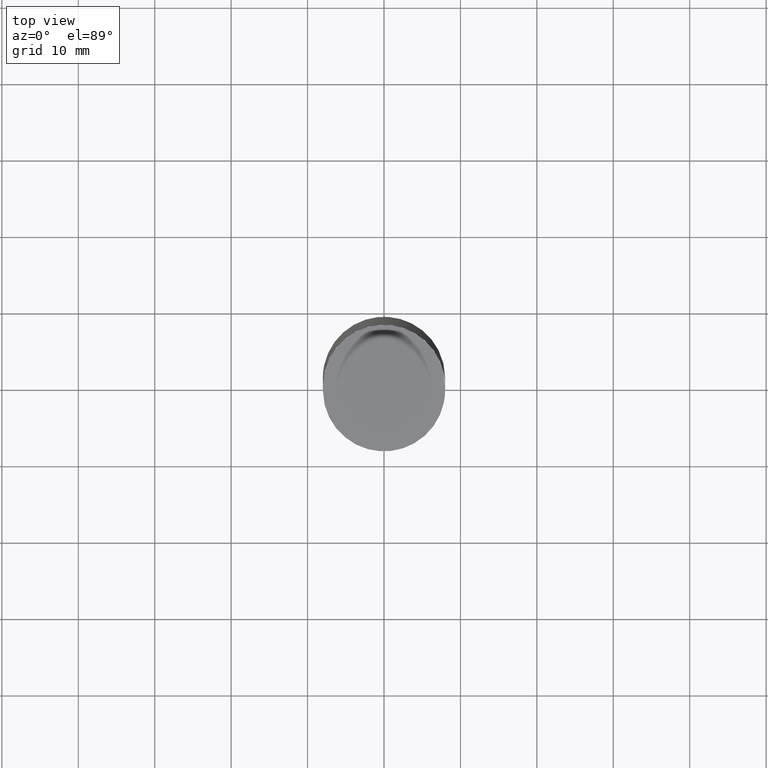
[diagram: clean part render]
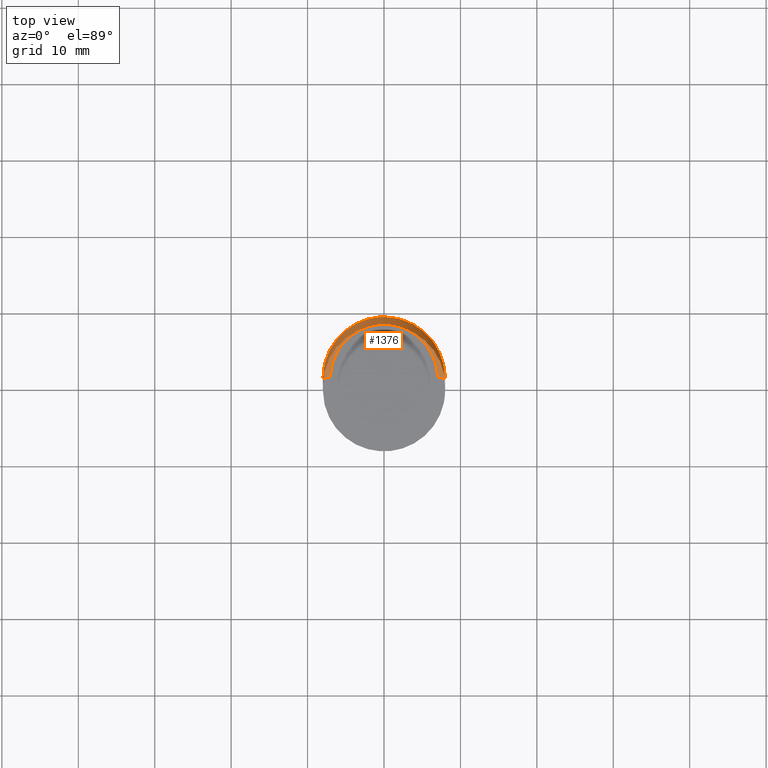
[diagram: same view with one face highlighted and labeled with its STEP entity id]
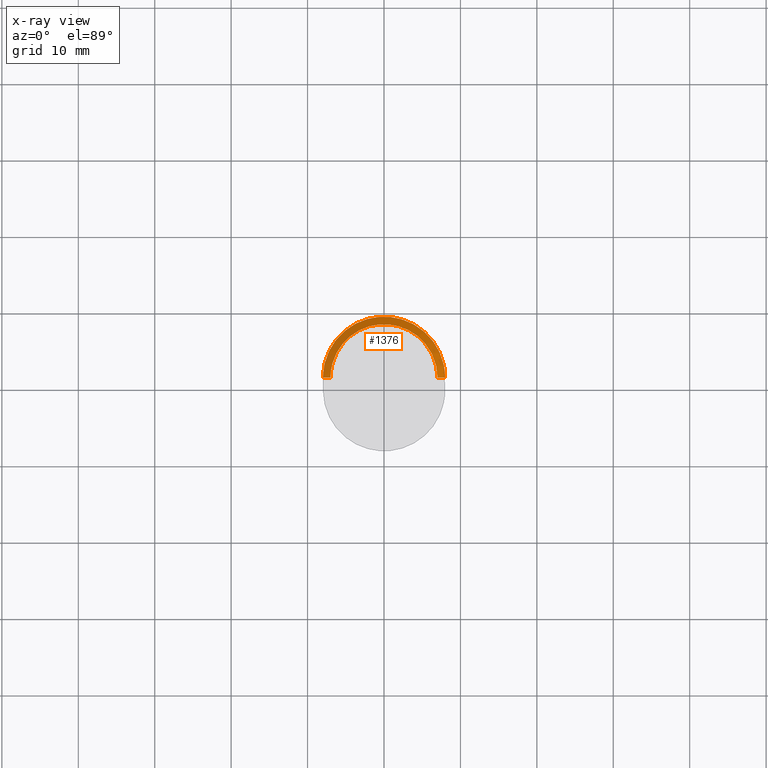
[diagram: x-ray of the same camera — body ghosted, the highlighted face saturated]
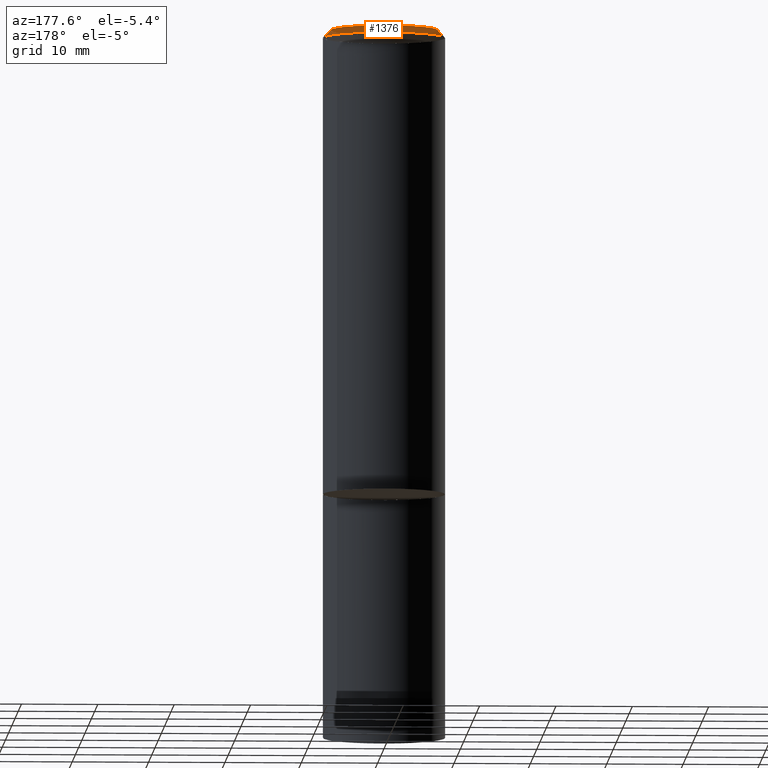
[diagram: same view with one face highlighted and labeled with its STEP entity id]
A machine part, top view. The second image highlights one B-rep face of the part: STEP entity #1376.
The next image is the same camera in x-ray: the body ghosted, the highlighted face saturated — about 0% of this face is hidden behind the body in this view.
A second angle (auxiliary view) of the same face is appended — the face is thin or edge-on in the first view.
In plain terms, the highlighted face is a freeform B-spline surface patch.
Its self-contained STEP definition (entity closure, byte-faithful):
#1190=CARTESIAN_POINT('',(8.0,0.0,60.0));
#1191=CARTESIAN_POINT('',(8.0,8.0,60.0));
#1192=CARTESIAN_POINT('',(0.0,8.0,60.0));
#1193=CARTESIAN_POINT('',(-8.0,8.0,60.0));
#1194=CARTESIAN_POINT('',(-8.0,0.0,60.0));
#1195=CARTESIAN_POINT('',(7.0,0.0,61.0));
#1196=CARTESIAN_POINT('',(7.0,7.0,61.0));
#1197=CARTESIAN_POINT('',(0.0,7.0,61.0));
#1198=CARTESIAN_POINT('',(-7.0,7.0,61.0));
#1199=CARTESIAN_POINT('',(-7.0,0.0,61.0));
#1357=(
BOUNDED_SURFACE()
B_SPLINE_SURFACE(1,2,(
(#1190,#1191,#1192,#1193,#1194),
(#1195,#1196,#1197,#1198,#1199)
), .UNSPECIFIED.,.F.,.F.,.F.)
B_SPLINE_SURFACE_WITH_KNOTS((2,2),(3,2,3),(
0.0,1.0),(
0.0,0.5,1.0), .UNSPECIFIED.)
GEOMETRIC_REPRESENTATION_ITEM()
RATIONAL_B_SPLINE_SURFACE(((1.0,0.707106781187,1.0,0.707106781187,1.0),
(1.0,0.707106781187,1.0,0.707106781187,1.0)
))
REPRESENTATION_ITEM('')
SURFACE()
);
#1358=(
BOUNDED_CURVE()
B_SPLINE_CURVE(2,(#1194,#1193,#1192,#1191,#1190),.UNSPECIFIED.,.F.,.F.)
B_SPLINE_CURVE_WITH_KNOTS((3,2,3),
(0.0,0.5,1.0),.UNSPECIFIED.)
CURVE()
GEOMETRIC_REPRESENTATION_ITEM()
RATIONAL_B_SPLINE_CURVE((1.0,0.707106781187,1.0,0.707106781187,1.0))
REPRESENTATION_ITEM('')
);
#1359=(
BOUNDED_CURVE()
B_SPLINE_CURVE(1,(#1190,#1195),.UNSPECIFIED.,.F.,.F.)
B_SPLINE_CURVE_WITH_KNOTS((2,2),
(0.0,1.0),.UNSPECIFIED.)
CURVE()
GEOMETRIC_REPRESENTATION_ITEM()
RATIONAL_B_SPLINE_CURVE((1.0,1.0))
REPRESENTATION_ITEM('')
);
#1360=(
BOUNDED_CURVE()
B_SPLINE_CURVE(2,(#1195,#1196,#1197,#1198,#1199),.UNSPECIFIED.,.F.,.F.)
B_SPLINE_CURVE_WITH_KNOTS((3,2,3),
(0.0,0.5,1.0),.UNSPECIFIED.)
CURVE()
GEOMETRIC_REPRESENTATION_ITEM()
RATIONAL_B_SPLINE_CURVE((1.0,0.707106781187,1.0,0.707106781187,1.0))
REPRESENTATION_ITEM('')
);
#1361=(
BOUNDED_CURVE()
B_SPLINE_CURVE(1,(#1199,#1194),.UNSPECIFIED.,.F.,.F.)
B_SPLINE_CURVE_WITH_KNOTS((2,2),
(0.0,1.0),.UNSPECIFIED.)
CURVE()
GEOMETRIC_REPRESENTATION_ITEM()
RATIONAL_B_SPLINE_CURVE((1.0,1.0))
REPRESENTATION_ITEM('')
);
#1362=VERTEX_POINT('',#1190);
#1363=VERTEX_POINT('',#1194);
#1364=VERTEX_POINT('',#1195);
#1365=VERTEX_POINT('',#1199);
#1366=EDGE_CURVE('',#1363,#1362,#1358,.T.);
#1367=EDGE_CURVE('',#1362,#1364,#1359,.T.);
#1368=EDGE_CURVE('',#1364,#1365,#1360,.T.);
#1369=EDGE_CURVE('',#1365,#1363,#1361,.T.);
#1370=ORIENTED_EDGE('',*,*,#1366,.T.);
#1371=ORIENTED_EDGE('',*,*,#1367,.T.);
#1372=ORIENTED_EDGE('',*,*,#1368,.T.);
#1373=ORIENTED_EDGE('',*,*,#1369,.T.);
#1374=EDGE_LOOP('',(#1370,#1371,#1372,#1373));
#1375=FACE_OUTER_BOUND('',#1374,.T.);
#1376=ADVANCED_FACE('',(#1375),#1357,.T.);